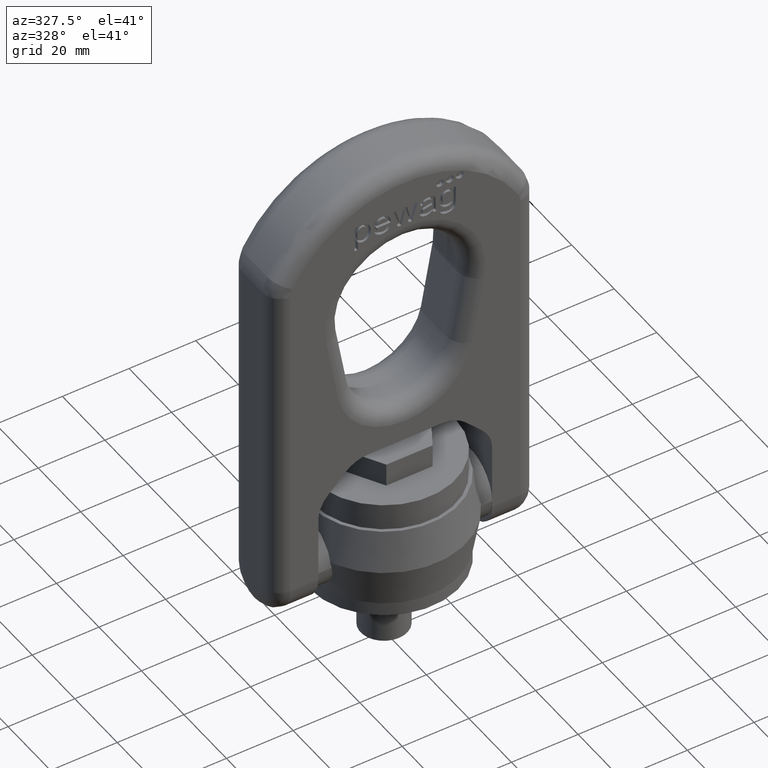
[diagram: clean part render]
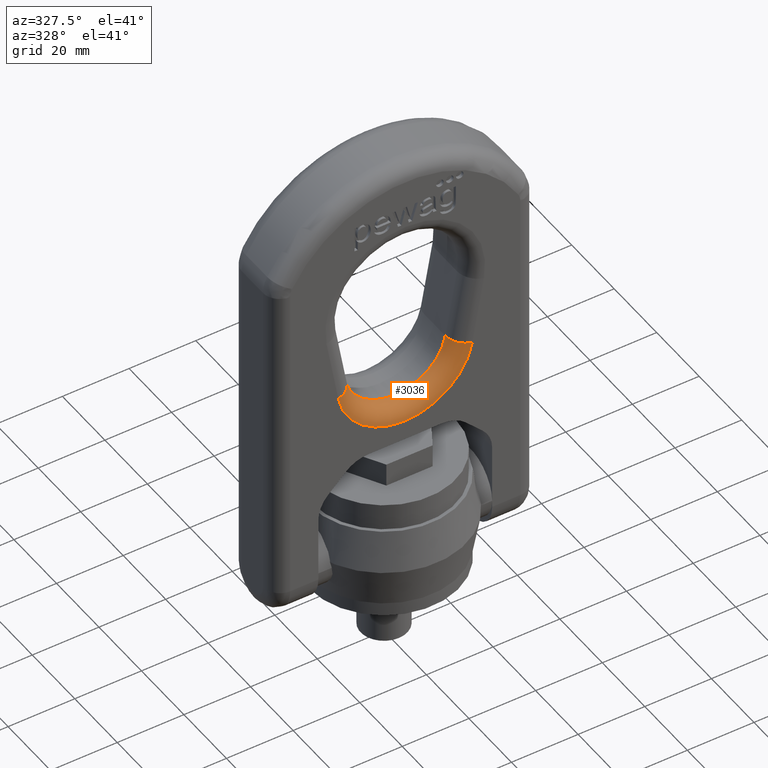
[diagram: same view with one face highlighted and labeled with its STEP entity id]
A machine part, auxiliary view. The second image highlights one B-rep face of the part: STEP entity #3036.
In plain terms, the highlighted toroidal blend (fillet) surface has major radius 20.4276 mm and minor (blend) radius 5 mm.
Its self-contained STEP definition (entity closure, byte-faithful):
#205=TOROIDAL_SURFACE('',#6058,20.4276486835797,5.);
#2661=FACE_OUTER_BOUND('',#3429,.T.);
#3036=ADVANCED_FACE('',(#2661),#205,.T.);
#3429=EDGE_LOOP('',(#4681,#4682,#4683,#4684));
#4681=ORIENTED_EDGE('',*,*,#5745,.F.);
#4682=ORIENTED_EDGE('',*,*,#5373,.F.);
#4683=ORIENTED_EDGE('',*,*,#5746,.F.);
#4684=ORIENTED_EDGE('',*,*,#5179,.F.);
#4743=VERTEX_POINT('',#7070);
#4746=VERTEX_POINT('',#7075);
#4911=VERTEX_POINT('',#7722);
#4918=VERTEX_POINT('',#7739);
#5179=EDGE_CURVE('',#4746,#4743,#5764,.T.);
#5373=EDGE_CURVE('',#4911,#4918,#5794,.T.);
#5745=EDGE_CURVE('',#4918,#4746,#5823,.T.);
#5746=EDGE_CURVE('',#4743,#4911,#5824,.T.);
#5764=CIRCLE('',#5870,20.4276486835797);
#5794=CIRCLE('',#5908,15.4276486835797);
#5823=CIRCLE('',#6056,5.);
#5824=CIRCLE('',#6057,5.);
#5870=AXIS2_PLACEMENT_3D('',#7076,#6197,#6198);
#5908=AXIS2_PLACEMENT_3D('',#7770,#6369,#6370);
#6056=AXIS2_PLACEMENT_3D('',#9837,#6920,#6921);
#6057=AXIS2_PLACEMENT_3D('',#9838,#6922,#6923);
#6058=AXIS2_PLACEMENT_3D('',#9839,#6924,#6925);
#6197=DIRECTION('',(0.,1.,0.));
#6198=DIRECTION('',(0.,0.,-1.));
#6369=DIRECTION('',(0.,-1.,0.));
#6370=DIRECTION('',(0.,0.,-1.));
#6920=DIRECTION('',(0.17364817766693,1.20492628143766E-16,0.984807753012208));
#6921=DIRECTION('',(0.984807753012208,0.,-0.17364817766693));
#6922=DIRECTION('',(-0.17364817766693,0.,0.984807753012208));
#6923=DIRECTION('',(0.984807753012208,0.,0.17364817766693));
#6924=DIRECTION('',(0.,-1.,0.));
#6925=DIRECTION('',(0.,0.,-1.));
#7070=CARTESIAN_POINT('',(-20.117306799399,-10.,69.8804247156558));
#7075=CARTESIAN_POINT('',(20.117306799399,-10.,69.8804247156558));
#7076=CARTESIAN_POINT('',(0.,-10.,73.4276486835797));
#7722=CARTESIAN_POINT('',(-15.1932680343379,-5.,70.7486656039905));
#7739=CARTESIAN_POINT('',(15.1932680343379,-5.,70.7486656039905));
#7770=CARTESIAN_POINT('',(0.,-5.,73.4276486835797));
#9837=CARTESIAN_POINT('',(20.117306799399,-5.,69.8804247156558));
#9838=CARTESIAN_POINT('',(-20.117306799399,-5.,69.8804247156558));
#9839=CARTESIAN_POINT('',(0.,-5.,73.4276486835797));